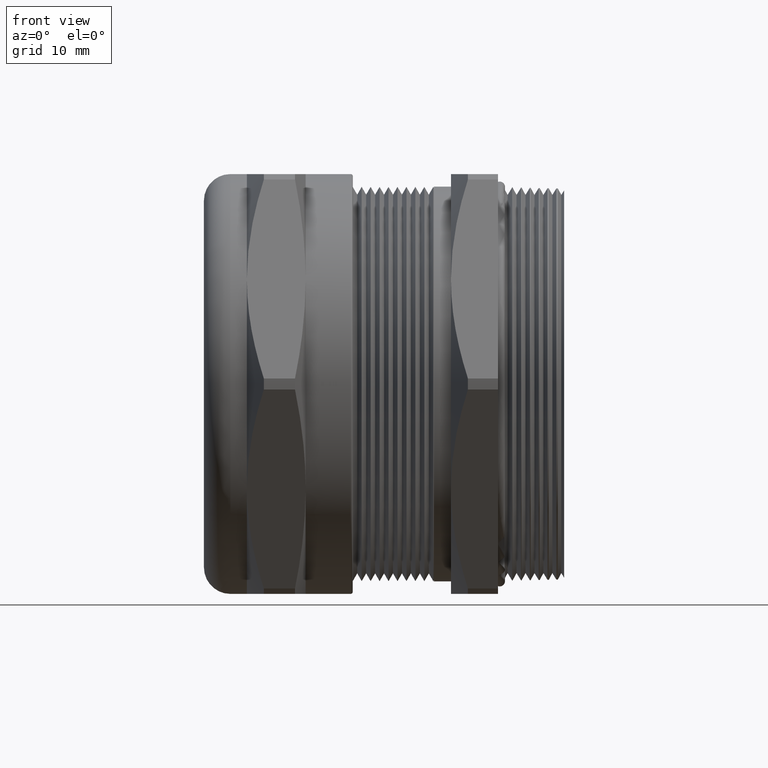
[diagram: clean part render]
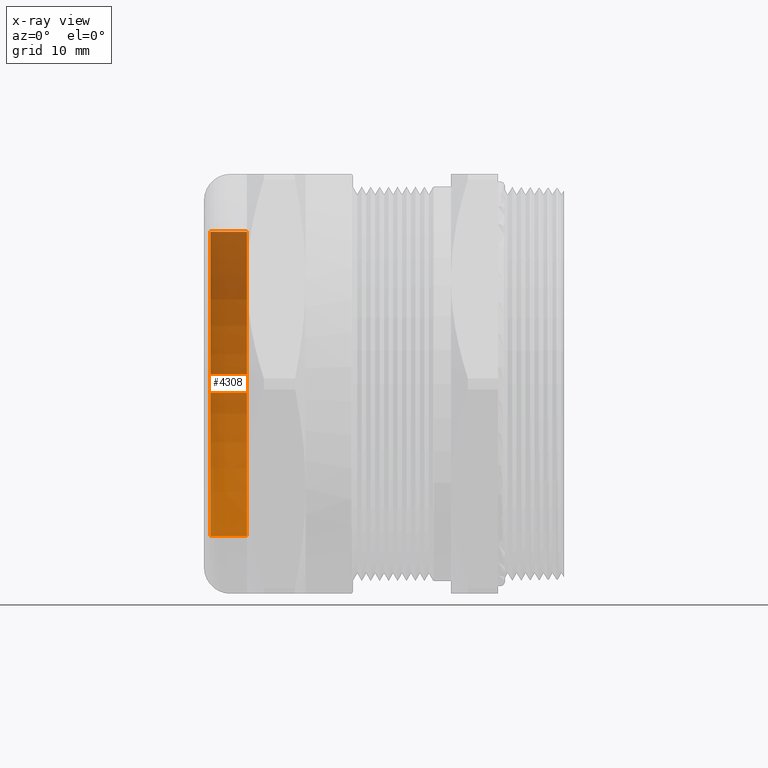
[diagram: x-ray — body ghosted, one internal face saturated and labeled with its STEP entity id]
A machine part, front view, then the same camera in x-ray: the body is ghosted and one INTERNAL B-rep face — a face not visible from any outside direction — is saturated and labeled: STEP entity #4308.
In plain terms, the highlighted cylindrical surface (partial cylindrical patch) has radius 18.1388 mm, axis along (1, 0, 0).
Its self-contained STEP definition (entity closure, byte-faithful):
#2657 = CARTESIAN_POINT ( 'NONE',  ( -0.6434999999999998500, 0.0000000000000000000, -0.7141250000000000100 ) ) ;
#2687 = CARTESIAN_POINT ( 'NONE',  ( -0.6434999999999998500, 8.745508954411034800E-017, 0.7141250000000000100 ) ) ;
#2688 = DIRECTION ( 'NONE',  ( 1.000000000000000000, 0.0000000000000000000, 0.0000000000000000000 ) ) ;
#2689 = VECTOR ( 'NONE', #2688, 39.37007874015748100 ) ;
#2690 = CARTESIAN_POINT ( 'NONE',  ( 0.5452584728366800500, 8.745508954411033500E-017, 0.7141249999999999000 ) ) ;
#2691 = LINE ( 'NONE', #2690, #2689 ) ;
#2696 = DIRECTION ( 'NONE',  ( 1.000000000000000000, 0.0000000000000000000, 0.0000000000000000000 ) ) ;
#2697 = VECTOR ( 'NONE', #2696, 39.37007874015748100 ) ;
#2698 = CARTESIAN_POINT ( 'NONE',  ( 0.5452584728366800500, 0.0000000000000000000, -0.7141249999999999000 ) ) ;
#2699 = LINE ( 'NONE', #2698, #2697 ) ;
#2734 = DIRECTION ( 'NONE',  ( 0.0000000000000000000, 0.0000000000000000000, -1.000000000000000000 ) ) ;
#2735 = DIRECTION ( 'NONE',  ( 1.000000000000000000, 0.0000000000000000000, 0.0000000000000000000 ) ) ;
#2736 = CARTESIAN_POINT ( 'NONE',  ( -0.6434999999999998500, 0.0000000000000000000, 0.0000000000000000000 ) ) ;
#2737 = AXIS2_PLACEMENT_3D ( 'NONE', #2736, #2735, #2734 ) ;
#2738 = CIRCLE ( 'NONE', #2737, 0.7141250000000000100 ) ;
#2764 = CARTESIAN_POINT ( 'NONE',  ( -0.8149999999999996100, 8.745508954411033500E-017, 0.7141249999999999000 ) ) ;
#3373 = DIRECTION ( 'NONE',  ( 0.0000000000000000000, 0.0000000000000000000, -1.000000000000000000 ) ) ;
#3374 = DIRECTION ( 'NONE',  ( 1.000000000000000000, 0.0000000000000000000, 0.0000000000000000000 ) ) ;
#3375 = AXIS2_PLACEMENT_3D ( 'NONE', #3377, #3374, #3373 ) ;
#3376 = CYLINDRICAL_SURFACE ( 'NONE', #3375, 0.7141249999999999000 ) ;
#3377 = CARTESIAN_POINT ( 'NONE',  ( 0.5452584728366800500, 0.0000000000000000000, 0.0000000000000000000 ) ) ;
#3378 = DIRECTION ( 'NONE',  ( 0.0000000000000000000, 0.0000000000000000000, -1.000000000000000000 ) ) ;
#3379 = DIRECTION ( 'NONE',  ( 1.000000000000000000, 0.0000000000000000000, 0.0000000000000000000 ) ) ;
#3380 = CARTESIAN_POINT ( 'NONE',  ( -0.8149999999999996100, 0.0000000000000000000, 0.0000000000000000000 ) ) ;
#3381 = AXIS2_PLACEMENT_3D ( 'NONE', #3380, #3379, #3378 ) ;
#3382 = CIRCLE ( 'NONE', #3381, 0.7141249999999999000 ) ;
#3383 = FACE_OUTER_BOUND ( 'NONE', #4299, .T. ) ;
#3390 = CARTESIAN_POINT ( 'NONE',  ( -0.8149999999999996100, 0.0000000000000000000, -0.7141249999999999000 ) ) ;
#3975 = ORIENTED_EDGE ( 'NONE', *, *, #3995, .F. ) ;
#3982 = ORIENTED_EDGE ( 'NONE', *, *, #3997, .T. ) ;
#3985 = ORIENTED_EDGE ( 'NONE', *, *, #4002, .F. ) ;
#3986 = VERTEX_POINT ( 'NONE', #2657 ) ;
#3995 = EDGE_CURVE ( 'NONE', #4305, #3986, #2699, .T. ) ;
#3997 = EDGE_CURVE ( 'NONE', #4031, #3998, #2691, .T. ) ;
#3998 = VERTEX_POINT ( 'NONE', #2687 ) ;
#4002 = EDGE_CURVE ( 'NONE', #3986, #3998, #2738, .T. ) ;
#4031 = VERTEX_POINT ( 'NONE', #2764 ) ;
#4298 = ORIENTED_EDGE ( 'NONE', *, *, #4307, .T. ) ;
#4299 = EDGE_LOOP ( 'NONE', ( #4298, #3982, #3985, #3975 ) ) ;
#4305 = VERTEX_POINT ( 'NONE', #3390 ) ;
#4307 = EDGE_CURVE ( 'NONE', #4305, #4031, #3382, .T. ) ;
#4308 = ADVANCED_FACE ( 'NONE', ( #3383 ), #3376, .T. ) ;